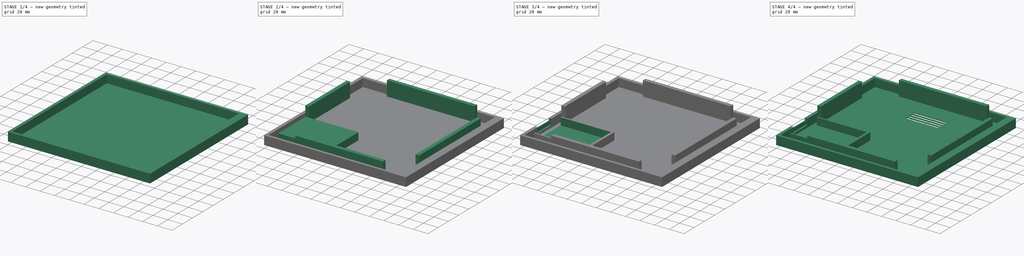
[diagram: build sequence overview — one tinted view per stage of 4, left to right]
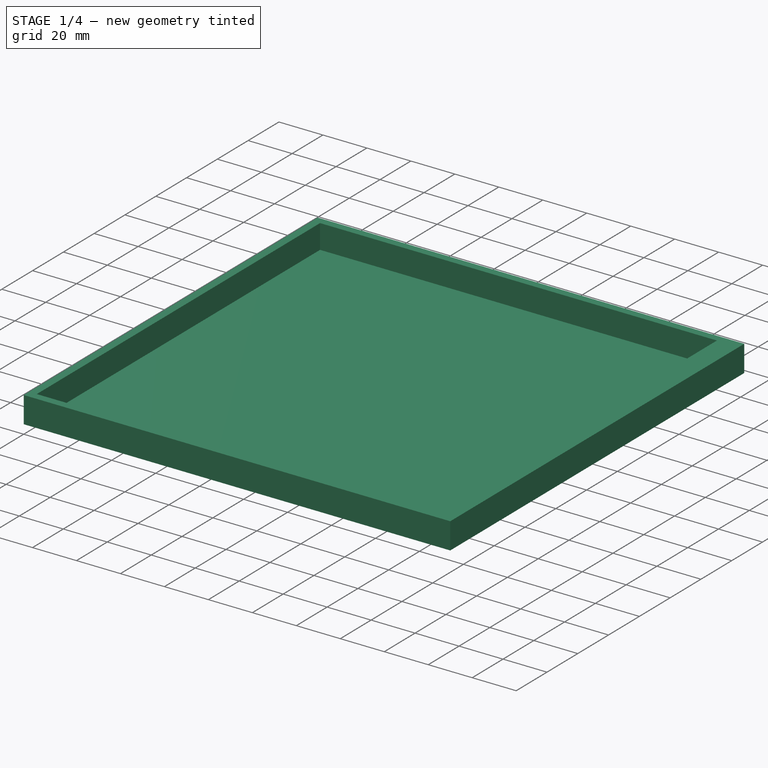
[diagram: stage 1 of 4 — iso view after this stage's code; geometry added in this stage tinted green]
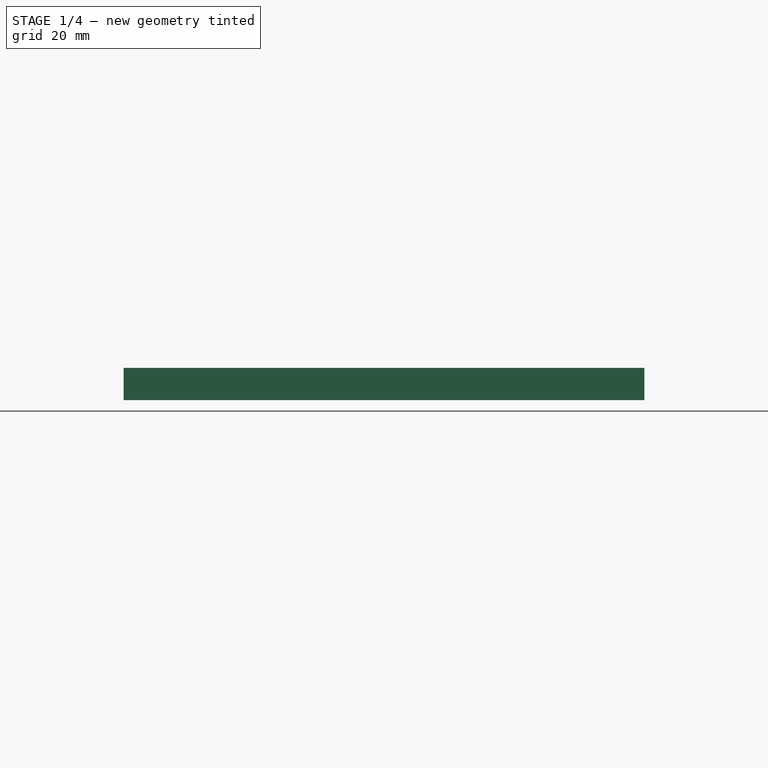
[diagram: stage 1 of 4 — front view after this stage's code; geometry added in this stage tinted green]
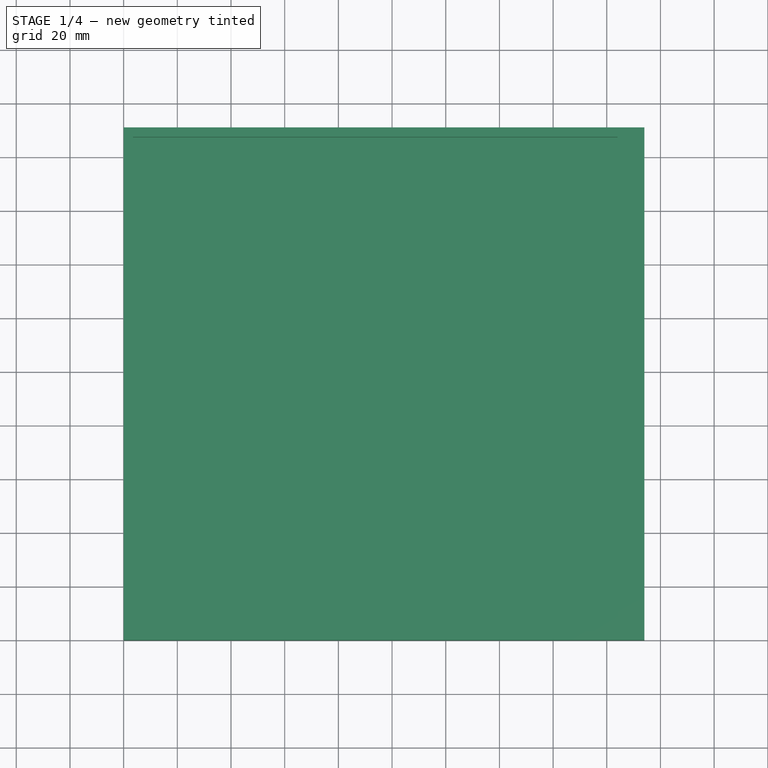
[diagram: stage 1 of 4 — top view after this stage's code; geometry added in this stage tinted green]
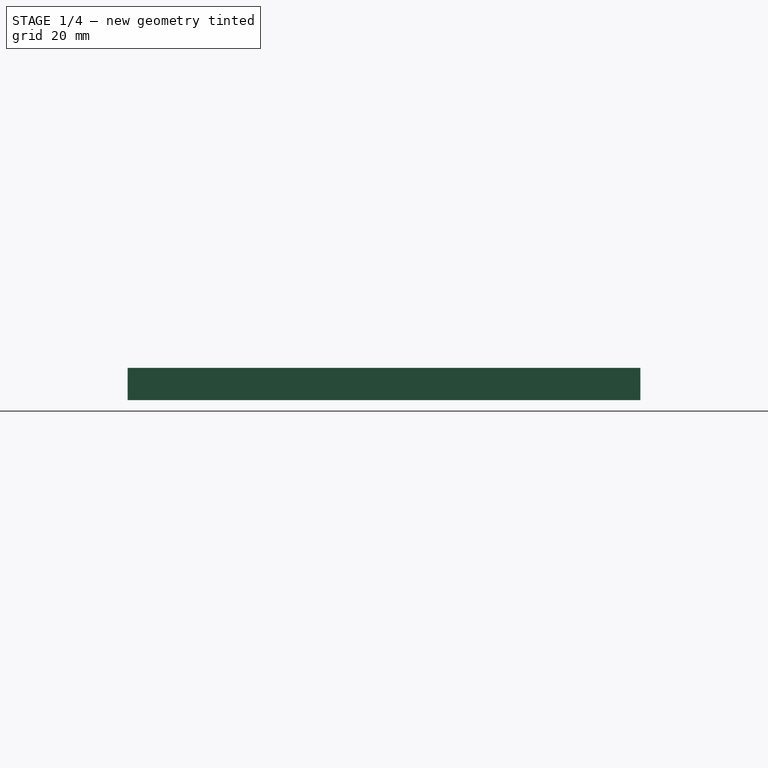
[diagram: stage 1 of 4 — right view after this stage's code; geometry added in this stage tinted green]
FCSTD DOCUMENT  (FreeCAD 1.0R39319 (Git))
Label: epaper_back
License: All rights reserved
objects: Sketcher::SketchObject×8, PartDesign::Pocket×5, PartDesign::Pad×3, PartDesign::LinearPattern×1, PartDesign::Body×1
note: 43 computed .brp shape members not serialized (recipe doc carries the construction recipe); baked Part::Feature solids carry a one-line shape summary decoded from their .brp

FEATURE [Sketcher::SketchObject] Sketch
  ArcFitTolerance = 1e-06
  AttachmentSupport = -> [XY_Plane]
  FullyConstrained = true
  MakeInternals = false
  MapMode = 5
  sketch-geometry (4):
    g0: LineSegment StartX=0 StartY=0 StartZ=0 EndX=194 EndY=0 EndZ=0
    g1: LineSegment StartX=194 StartY=0 StartZ=0 EndX=194 EndY=191 EndZ=0
    g2: LineSegment StartX=194 StartY=191 StartZ=0 EndX=0 EndY=191 EndZ=0
    g3: LineSegment StartX=0 StartY=191 StartZ=0 EndX=0 EndY=0 EndZ=0
  constraints (11):
    c: Coincident(g0,g1)
    c: Coincident(g1,g2)
    c: Coincident(g2,g3)
    c: Coincident(g3,g0)
    c: Horizontal(g0)
    c: Horizontal(g2)
    c: Vertical(g1)
    c: Vertical(g3)
    c: Coincident(g0,g-1)
    c: DistanceX(g2,g2) = 194
    c: DistanceY(g3,g3) = 191
FEATURE [PartDesign::Pad] Pad
  Direction = (0,0,1)
  Length = 12
  Length2 = 10
  Profile = -> Sketch
  ReferenceAxis = -> Sketch [N_Axis]
  Refine = true
  Reversed = true
  Suppressed = false
  Type = 0
FEATURE [Sketcher::SketchObject] Sketch002
  ArcFitTolerance = 1e-06
  AttachmentSupport = -> [XY_Plane]
  FullyConstrained = true
  MakeInternals = false
  MapMode = 5
  sketch-geometry (4):
    g0: LineSegment StartX=3.5 StartY=187.5 StartZ=0 EndX=3.5 EndY=3.5 EndZ=0
    g1: LineSegment StartX=3.5 StartY=3.5 StartZ=0 EndX=184 EndY=3.5 EndZ=0
    g2: LineSegment StartX=184 StartY=3.5 StartZ=0 EndX=184 EndY=187.5 EndZ=0
    g3: LineSegment StartX=184 StartY=187.5 StartZ=0 EndX=3.5 EndY=187.5 EndZ=0
  constraints (12):
    c: Coincident(g0,g1)
    c: Coincident(g1,g2)
    c: Coincident(g2,g3)
    c: Coincident(g3,g0)
    c: Vertical(g0)
    c: Vertical(g2)
    c: Horizontal(g1)
    c: Horizontal(g3)
    c: DistanceX(g3,g3) = 180.5
    c: DistanceY(g0,g0) = 184
    c: Distance(g-2,g0) = 3.5
    c: Distance(g-1,g1) = 3.5
FEATURE [PartDesign::Pocket] Pocket
  BaseFeature = -> Pad
  Direction = (0,0,-1)
  Length = 11
  Length2 = 5
  Profile = -> Sketch002
  ReferenceAxis = -> Sketch002 [N_Axis]
  Refine = true
  Suppressed = false
  Type = 0
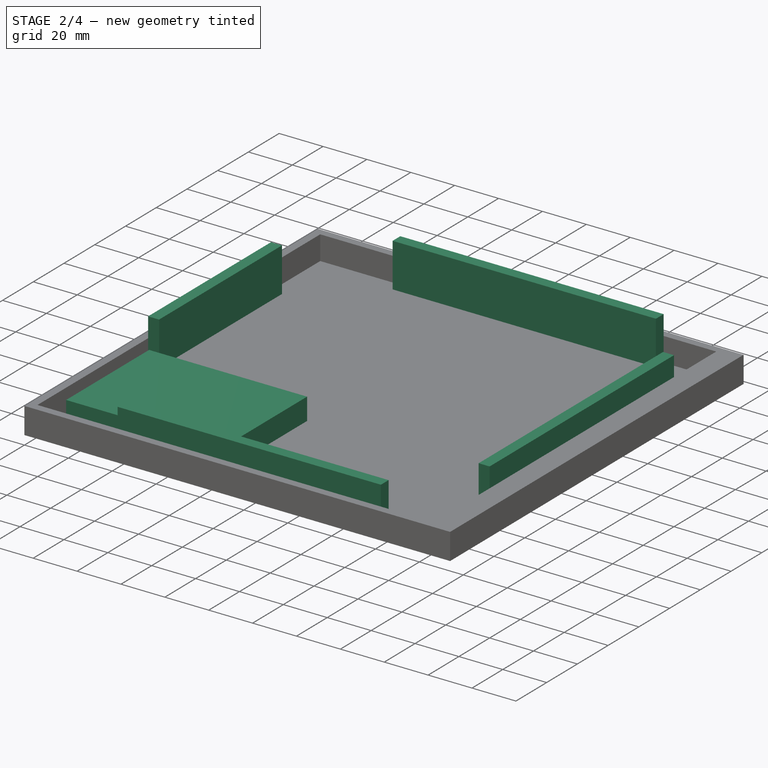
[diagram: stage 2 of 4 — iso view after this stage's code; geometry added in this stage tinted green]
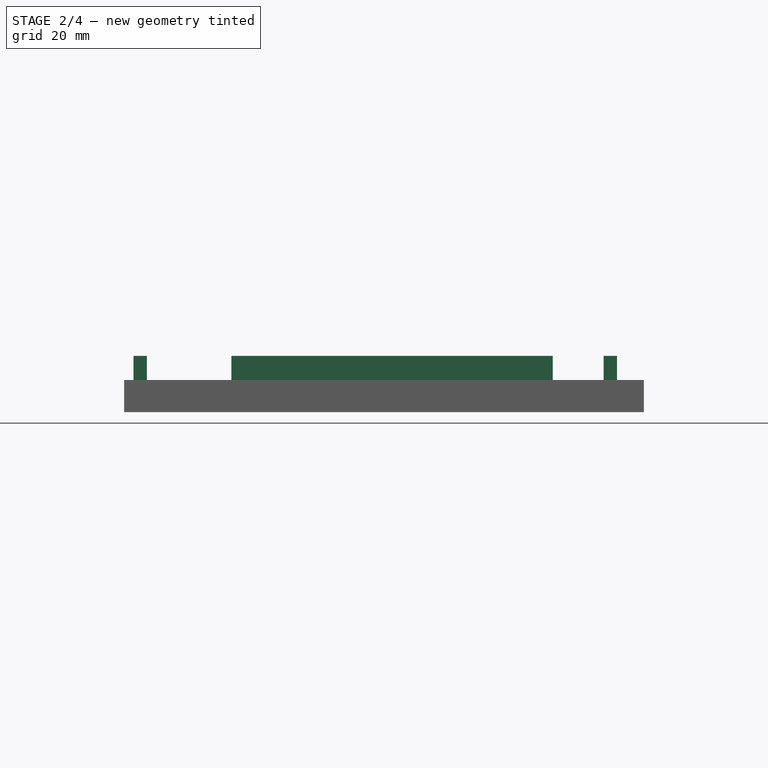
[diagram: stage 2 of 4 — front view after this stage's code; geometry added in this stage tinted green]
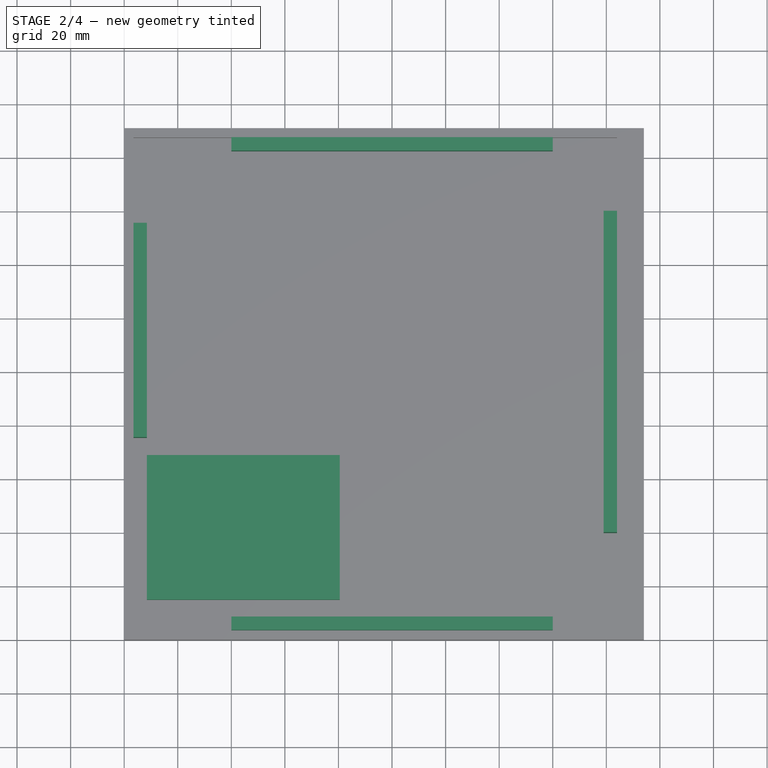
[diagram: stage 2 of 4 — top view after this stage's code; geometry added in this stage tinted green]
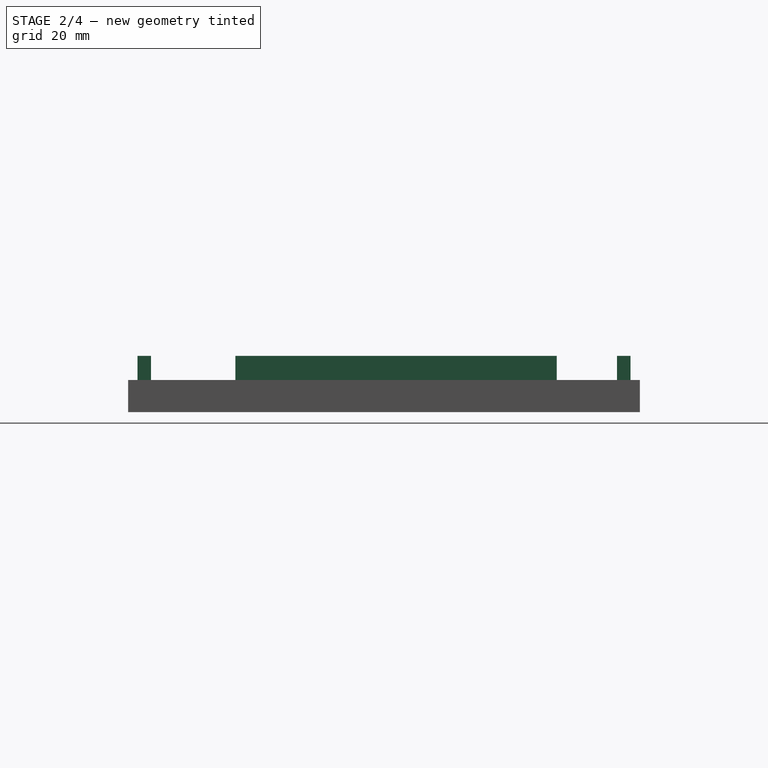
[diagram: stage 2 of 4 — right view after this stage's code; geometry added in this stage tinted green]
FEATURE [Sketcher::SketchObject] Sketch004
  ArcFitTolerance = 1e-06
  AttachmentSupport = -> [Pocket]
  FullyConstrained = true
  MakeInternals = false
  MapMode = 5
  Placement = pos=(0,0,-11) rot=(0,0,1;0rad)
  sketch-geometry (16):
    g0: LineSegment StartX=40 StartY=187.5 StartZ=0 EndX=40 EndY=182.5 EndZ=0
    g1: LineSegment StartX=40 StartY=182.5 StartZ=0 EndX=160 EndY=182.5 EndZ=0
    g2: LineSegment StartX=160 StartY=182.5 StartZ=0 EndX=160 EndY=187.5 EndZ=0
    g3: LineSegment StartX=160 StartY=187.5 StartZ=0 EndX=40 EndY=187.5 EndZ=0
    g4: LineSegment StartX=40 StartY=8.5 StartZ=0 EndX=40 EndY=3.5 EndZ=0
    g5: LineSegment StartX=40 StartY=3.5 StartZ=0 EndX=160 EndY=3.5 EndZ=0
    g6: LineSegment StartX=160 StartY=3.5 StartZ=0 EndX=160 EndY=8.5 EndZ=0
    g7: LineSegment StartX=160 StartY=8.5 StartZ=0 EndX=40 EndY=8.5 EndZ=0
    g8: LineSegment StartX=179 StartY=160 StartZ=0 EndX=179 EndY=40 EndZ=0
    g9: LineSegment StartX=179 StartY=40 StartZ=0 EndX=184 EndY=40 EndZ=0
    g10: LineSegment StartX=184 StartY=40 StartZ=0 EndX=184 EndY=160 EndZ=0
    g11: LineSegment StartX=184 StartY=160 StartZ=0 EndX=179 EndY=160 EndZ=0
    g12: LineSegment StartX=3.5 StartY=155.5 StartZ=0 EndX=3.5 EndY=75.5 EndZ=0
    g13: LineSegment StartX=3.5 StartY=75.5 StartZ=0 EndX=8.5 EndY=75.5 EndZ=0
    g14: LineSegment StartX=8.5 StartY=75.5 StartZ=0 EndX=8.5 EndY=155.5 EndZ=0
    g15: LineSegment StartX=8.5 StartY=155.5 StartZ=0 EndX=3.5 EndY=155.5 EndZ=0
  constraints (48):
    c: Coincident(g0,g1)
    c: Coincident(g1,g2)
    c: Coincident(g2,g3)
    c: Coincident(g3,g0)
    c: Vertical(g0)
    c: Vertical(g2)
    c: Horizontal(g1)
    c: Horizontal(g3)
    c: Coincident(g4,g5)
    c: Coincident(g5,g6)
    c: Coincident(g6,g7)
    c: Coincident(g7,g4)
    c: Vertical(g4)
    c: Vertical(g6)
    c: Horizontal(g5)
    c: Horizontal(g7)
    c: Coincident(g8,g9)
    c: Coincident(g9,g10)
    c: Coincident(g10,g11)
    c: Coincident(g11,g8)
    c: Vertical(g8)
    c: Vertical(g10)
    c: Horizontal(g9)
    c: Horizontal(g11)
    c: Coincident(g12,g13)
    c: Coincident(g13,g14)
    c: Coincident(g14,g15)
    c: Coincident(g15,g12)
    c: Vertical(g12)
    c: Vertical(g14)
    c: Horizontal(g13)
    c: Horizontal(g15)
    c: DistanceY(g2,g2) = 5
    c: DistanceX(g15,g15) = 5
    c: DistanceX(g11,g11) = 5
    c: DistanceY(g6,g6) = 5
    c: Distance(g-1,g5) = 3.5
    c: Distance(g-2,g12) = 3.5
    c: Distance(g-2,g8) = 179
    c: Distance(g-1,g1) = 182.5
    c: DistanceY(g14,g14) = 80
    c: DistanceX(g1,g1) = 120
    c: DistanceY(g8,g8) = 120
    c: Distance(g-1,g13) = 75.5
    c: Distance(g-1,g9) = 40
    c: Distance(g-2,g4) = 40
    c: Distance(g-2,g0) = 40
    c: DistanceX(g7,g7) = 120
FEATURE [PartDesign::Pad] Pad001
  BaseFeature = -> Pocket
  Direction = (0,0,1)
  Length = 20
  Length2 = 10
  Profile = -> Sketch004
  ReferenceAxis = -> Sketch004 [N_Axis]
  Refine = true
  Suppressed = false
  Type = 0
FEATURE [Sketcher::SketchObject] Sketch005
  ArcFitTolerance = 1e-06
  AttachmentSupport = -> [Pad001]
  FullyConstrained = true
  MakeInternals = false
  MapMode = 5
  Placement = pos=(0,0,-11) rot=(0,0,1;0rad)
  sketch-geometry (4):
    g0: LineSegment StartX=8.5 StartY=69 StartZ=0 EndX=8.5 EndY=15 EndZ=0
    g1: LineSegment StartX=8.5 StartY=15 StartZ=0 EndX=80.5 EndY=15 EndZ=0
    g2: LineSegment StartX=80.5 StartY=15 StartZ=0 EndX=80.5 EndY=69 EndZ=0
    g3: LineSegment StartX=80.5 StartY=69 StartZ=0 EndX=8.5 EndY=69 EndZ=0
  constraints (12):
    c: Coincident(g0,g1)
    c: Coincident(g1,g2)
    c: Coincident(g2,g3)
    c: Coincident(g3,g0)
    c: Vertical(g0)
    c: Vertical(g2)
    c: Horizontal(g1)
    c: Horizontal(g3)
    c: DistanceX(g3,g3) = 72
    c: DistanceY(g2,g2) = 54
    c: Distance(g-2,g0) = 8.5
    c: Distance(g-1,g1) = 15
FEATURE [PartDesign::Pad] Pad002
  BaseFeature = -> Pad001
  Direction = (0,0,1)
  Length = 10
  Length2 = 10
  Profile = -> Sketch005
  ReferenceAxis = -> Sketch005 [N_Axis]
  Refine = true
  Suppressed = false
  Type = 0
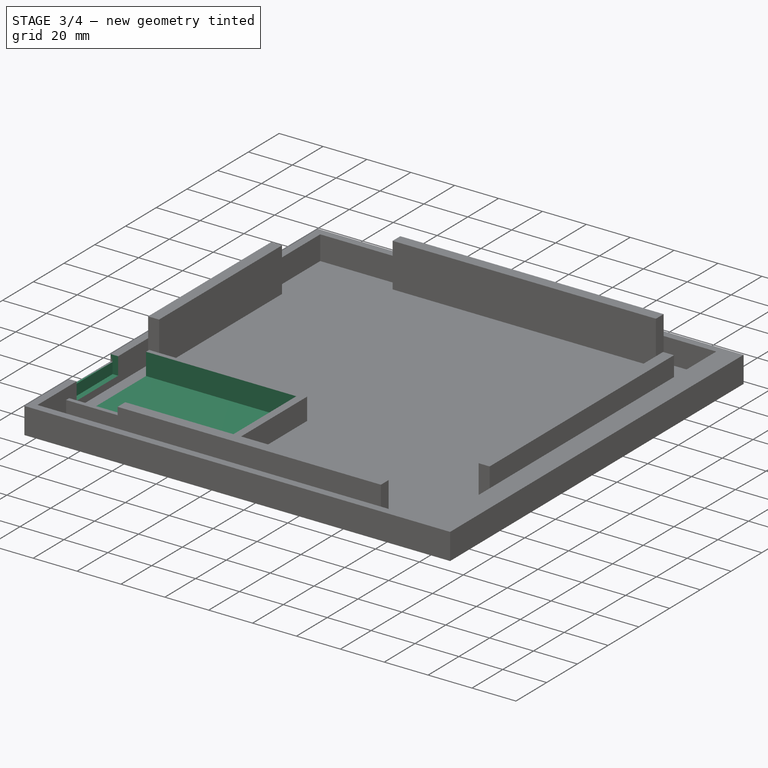
[diagram: stage 3 of 4 — iso view after this stage's code; geometry added in this stage tinted green]
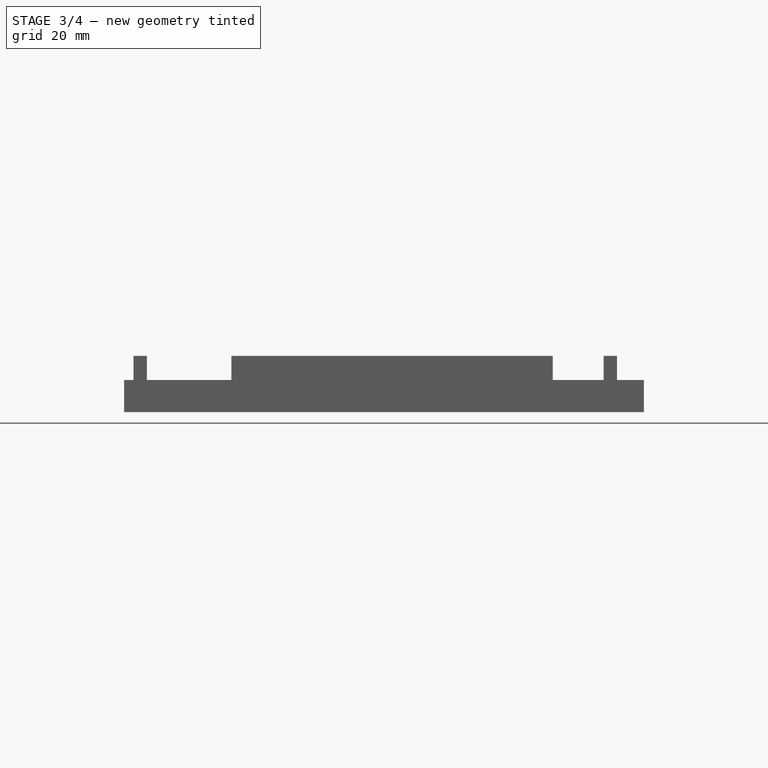
[diagram: stage 3 of 4 — front view after this stage's code; geometry added in this stage tinted green]
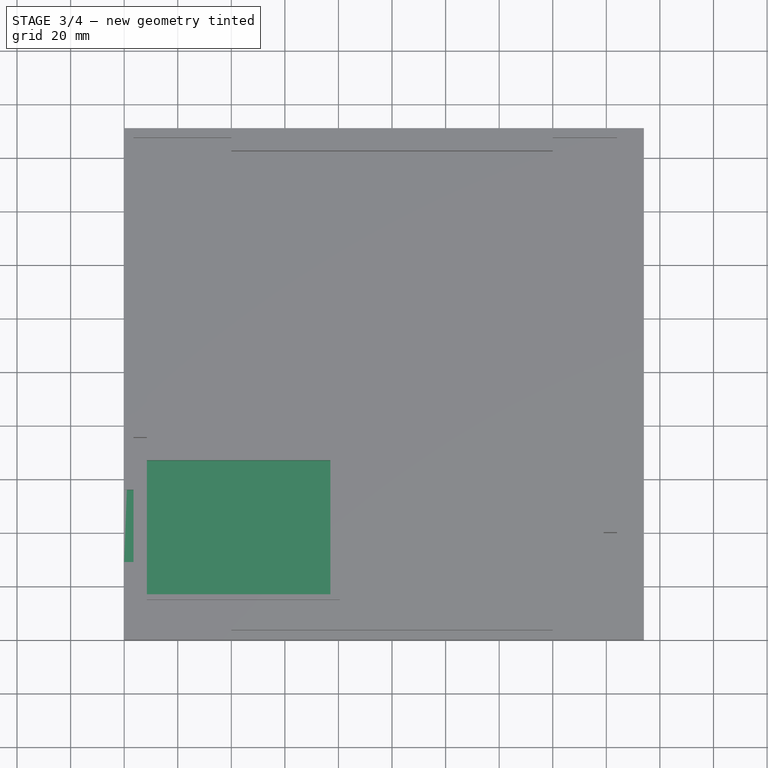
[diagram: stage 3 of 4 — top view after this stage's code; geometry added in this stage tinted green]
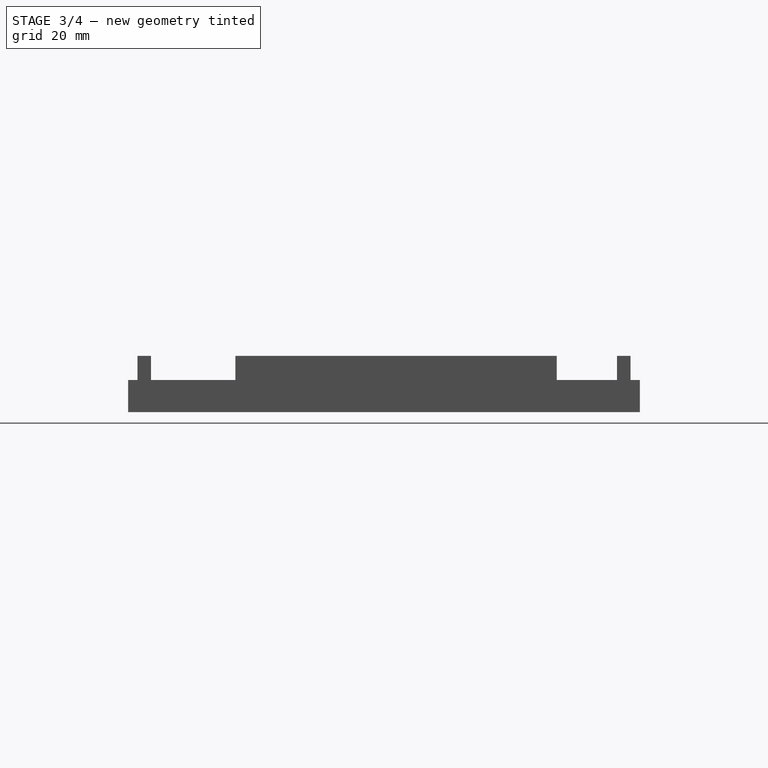
[diagram: stage 3 of 4 — right view after this stage's code; geometry added in this stage tinted green]
FEATURE [Sketcher::SketchObject] Sketch006
  ArcFitTolerance = 1e-06
  AttachmentSupport = -> [Pad002]
  FullyConstrained = true
  MakeInternals = false
  MapMode = 5
  Placement = pos=(0,0,-1) rot=(0,0,1;0rad)
  sketch-geometry (4):
    g0: LineSegment StartX=7 StartY=67 StartZ=0 EndX=7 EndY=17 EndZ=0
    g1: LineSegment StartX=7 StartY=17 StartZ=0 EndX=77 EndY=17 EndZ=0
    g2: LineSegment StartX=77 StartY=17 StartZ=0 EndX=77 EndY=67 EndZ=0
    g3: LineSegment StartX=77 StartY=67 StartZ=0 EndX=7 EndY=67 EndZ=0
  constraints (12):
    c: Coincident(g0,g1)
    c: Coincident(g1,g2)
    c: Coincident(g2,g3)
    c: Coincident(g3,g0)
    c: Vertical(g0)
    c: Vertical(g2)
    c: Horizontal(g1)
    c: Horizontal(g3)
    c: DistanceX(g3,g3) = 70
    c: DistanceY(g2,g2) = 50
    c: Distance(g1,g-1) = 17
    c: Distance(g-2,g0) = 7
FEATURE [PartDesign::Pocket] Pocket001
  BaseFeature = -> Pad002
  Direction = (0,0,-1)
  Length = 10
  Length2 = 5
  Profile = -> Sketch006
  ReferenceAxis = -> Sketch006 [N_Axis]
  Refine = true
  Suppressed = false
  Type = 0
FEATURE [Sketcher::SketchObject] Sketch007
  ArcFitTolerance = 1e-06
  AttachmentSupport = -> [Pocket001]
  FullyConstrained = true
  MakeInternals = false
  MapMode = 5
  Placement = pos=(0,0,0) rot=(0.57735,-0.57735,-0.57735;2.0944rad)
  sketch-geometry (4):
    g0: LineSegment StartX=-56 StartY=0 StartZ=0 EndX=-56 EndY=-3 EndZ=0
    g1: LineSegment StartX=-56 StartY=-3 StartZ=0 EndX=-29 EndY=-3 EndZ=0
    g2: LineSegment StartX=-29 StartY=-3 StartZ=0 EndX=-29 EndY=0 EndZ=0
    g3: LineSegment StartX=-29 StartY=0 StartZ=0 EndX=-56 EndY=0 EndZ=0
  constraints (12):
    c: Coincident(g0,g1)
    c: Coincident(g1,g2)
    c: Coincident(g2,g3)
    c: Coincident(g3,g0)
    c: Vertical(g0)
    c: Vertical(g2)
    c: Horizontal(g1)
    c: Horizontal(g3)
    c: PointOnObject(g0,g-1)
    c: Distance(g2,g2) = 3
    c: DistanceX(g3,g3) = 27
    c: Distance(g-2,g2) = 29
FEATURE [PartDesign::Pocket] Pocket002
  BaseFeature = -> Pocket001
  Direction = (1,0,0)
  Length = 5
  Length2 = 5
  Profile = -> Sketch007
  ReferenceAxis = -> Sketch007 [N_Axis]
  Refine = true
  Suppressed = false
  Type = 0
FEATURE [Sketcher::SketchObject] Sketch008
  ArcFitTolerance = 1e-06
  AttachmentSupport = -> [Pocket002]
  FullyConstrained = true
  MakeInternals = false
  MapMode = 5
  Placement = pos=(0,0,-3) rot=(0,0,1;0rad)
  sketch-geometry (4):
    g0: LineSegment StartX=1 StartY=56 StartZ=0 EndX=1 EndY=29 EndZ=0
    g1: LineSegment StartX=1 StartY=29 StartZ=0 EndX=3.5 EndY=29 EndZ=0
    g2: LineSegment StartX=3.5 StartY=29 StartZ=0 EndX=3.5 EndY=56 EndZ=0
    g3: LineSegment StartX=3.5 StartY=56 StartZ=0 EndX=1 EndY=56 EndZ=0
  constraints (12):
    c: Coincident(g0,g1)
    c: Coincident(g1,g2)
    c: Coincident(g2,g3)
    c: Coincident(g3,g0)
    c: Vertical(g0)
    c: Vertical(g2)
    c: Horizontal(g1)
    c: Horizontal(g3)
    c: DistanceY(g2,g2) = 27
    c: DistanceX(g3,g3) = 2.5
    c: Distance(g1,g-1) = 29
    c: Distance(g-2,g0) = 1
FEATURE [PartDesign::Pocket] Pocket003
  BaseFeature = -> Pocket002
  Direction = (0,0,-1)
  Length = 5
  Length2 = 5
  Profile = -> Sketch008
  ReferenceAxis = -> Sketch008 [N_Axis]
  Refine = true
  Suppressed = false
  Type = 0
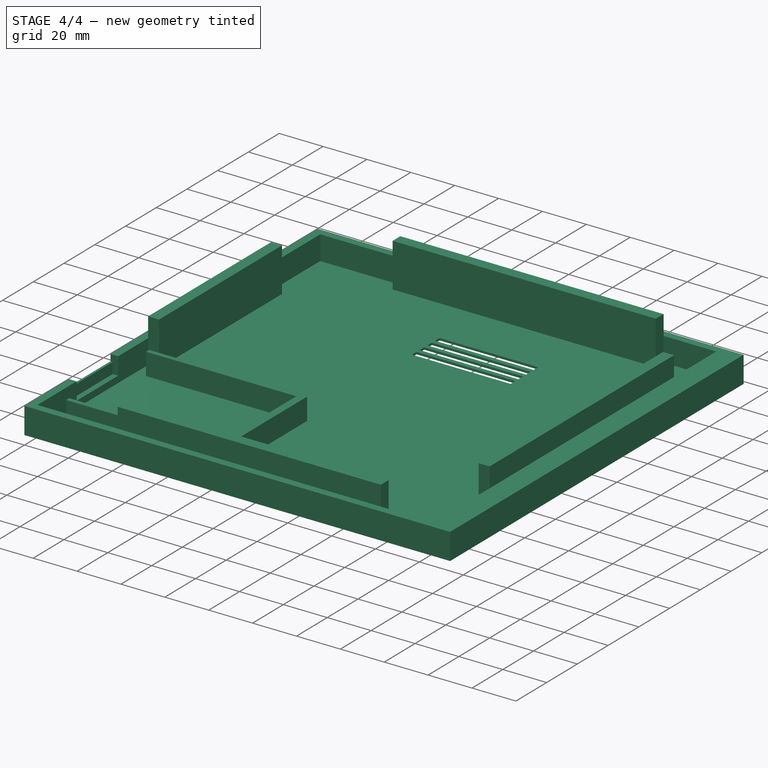
[diagram: stage 4 of 4 — iso view after this stage's code; geometry added in this stage tinted green]
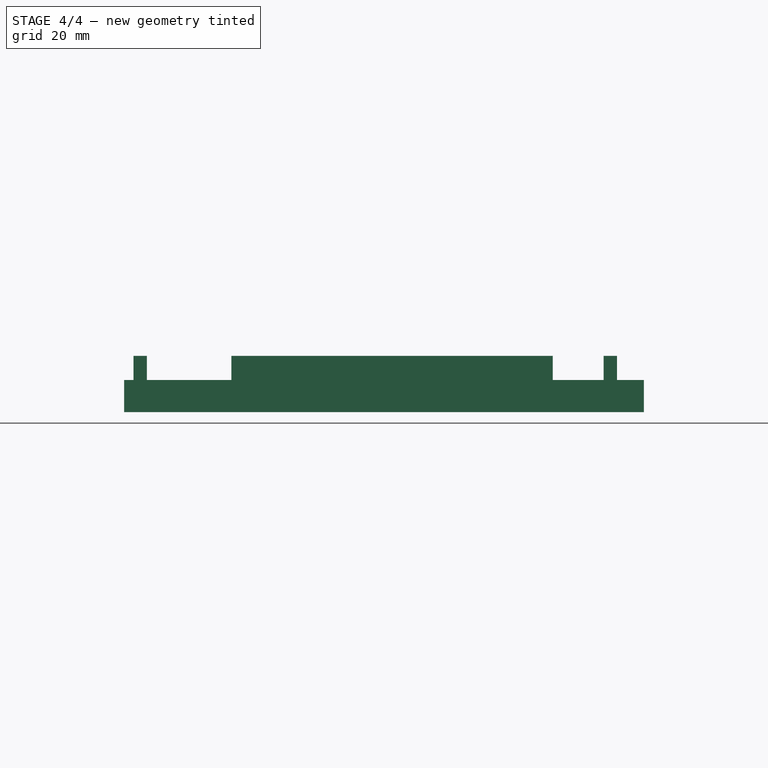
[diagram: stage 4 of 4 — front view after this stage's code; geometry added in this stage tinted green]
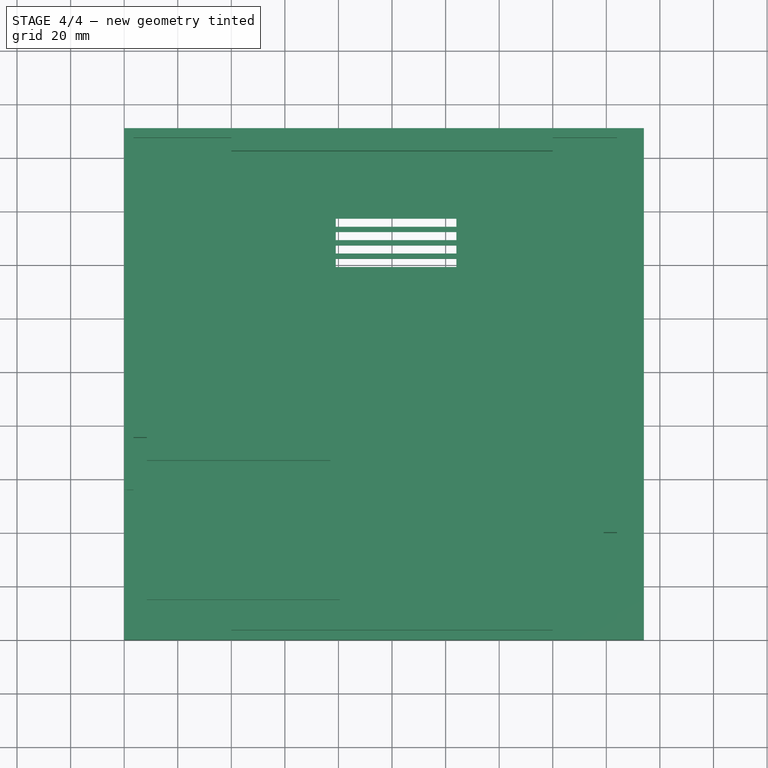
[diagram: stage 4 of 4 — top view after this stage's code; geometry added in this stage tinted green]
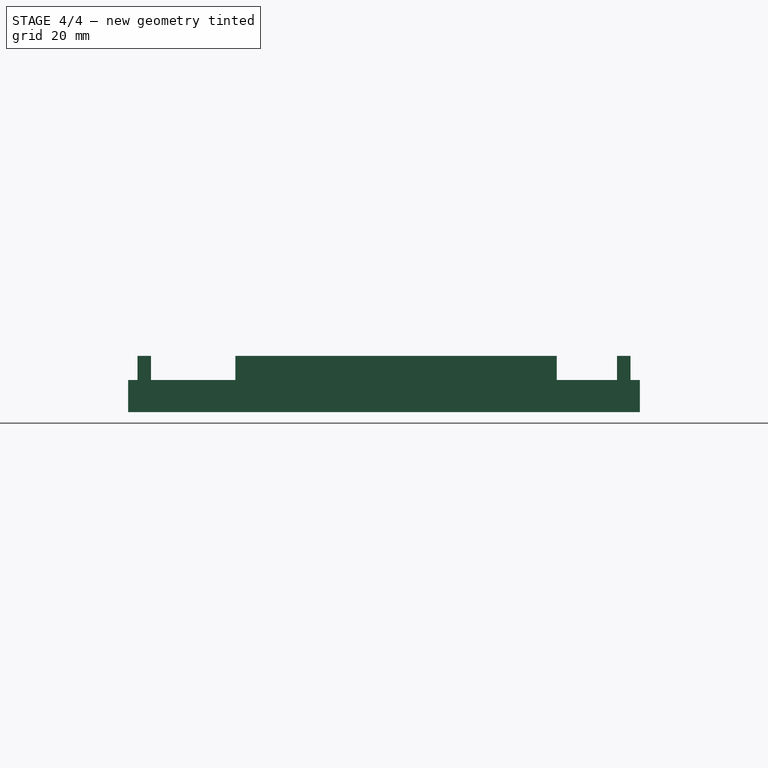
[diagram: stage 4 of 4 — right view after this stage's code; geometry added in this stage tinted green]
FEATURE [Sketcher::SketchObject] Sketch009
  ArcFitTolerance = 1e-06
  AttachmentSupport = -> [Pocket003]
  FullyConstrained = false
  MakeInternals = false
  MapMode = 5
  Placement = pos=(0,0,-11) rot=(0,0,1;0rad)
  sketch-geometry (4):
    g0: LineSegment StartX=79 StartY=157.368 StartZ=0 EndX=79 EndY=154.368 EndZ=0
    g1: LineSegment StartX=79 StartY=154.368 StartZ=0 EndX=124 EndY=154.368 EndZ=0
    g2: LineSegment StartX=124 StartY=154.368 StartZ=0 EndX=124 EndY=157.368 EndZ=0
    g3: LineSegment StartX=124 StartY=157.368 StartZ=0 EndX=79 EndY=157.368 EndZ=0
  constraints (11):
    c: Coincident(g0,g1)
    c: Coincident(g1,g2)
    c: Coincident(g2,g3)
    c: Coincident(g3,g0)
    c: Vertical(g0)
    c: Vertical(g2)
    c: Horizontal(g1)
    c: Horizontal(g3)
    c: DistanceX(g3,g3) = 45
    c: DistanceY(g0,g0) = 3
    c: Distance(g-2,g0) = 79
FEATURE [PartDesign::Pocket] Pocket004
  BaseFeature = -> Pocket003
  Direction = (0,0,-1)
  Length = 5
  Length2 = 5
  Profile = -> Sketch009
  ReferenceAxis = -> Sketch009 [N_Axis]
  Refine = true
  Suppressed = false
  Type = 0
FEATURE [PartDesign::LinearPattern] LinearPattern
  BaseFeature = -> Pocket004
  Direction = -> Sketch009 [V_Axis]
  Length = 15
  Mode = 0
  Occurrences = 4
  Offset = 5
  Originals = -> [Pocket004]
  Refine = true
  Reversed = true
  Suppressed = false
  TransformMode = 0
FEATURE [PartDesign::Body] Body  label="Corps"
  AllowCompound = false
  Group = -> [Sketch,Pad,Sketch002,Pocket,Sketch004,Pad001,Sketch005,Pad002,Sketch006,Pocket001,Sketch007,Pocket002,Sketch008,Pocket003,Sketch009,Pocket004,LinearPattern]
  Origin = -> Origin
  Tip = -> LinearPattern
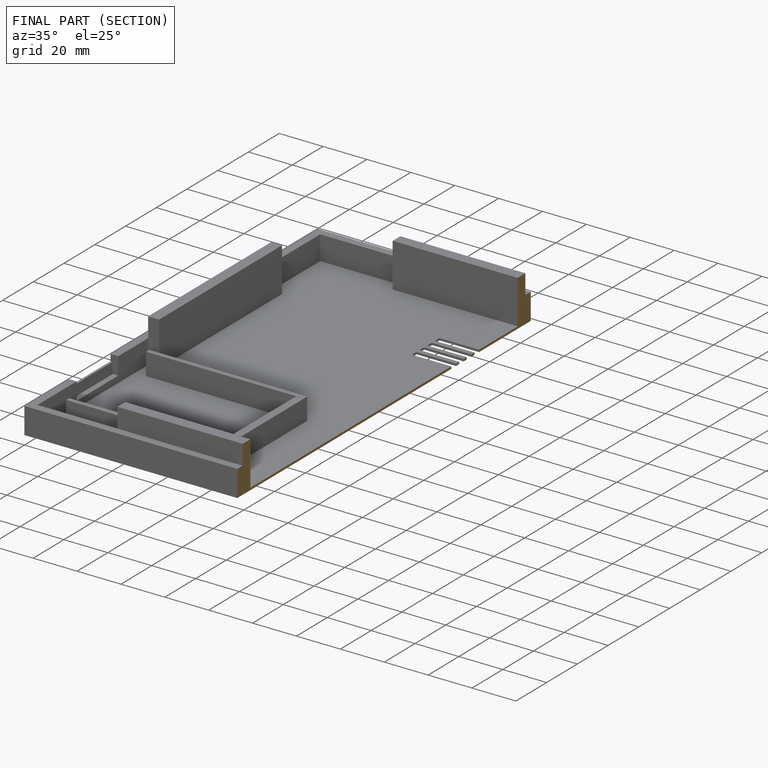
[diagram: finished part — half-section view (interior)]
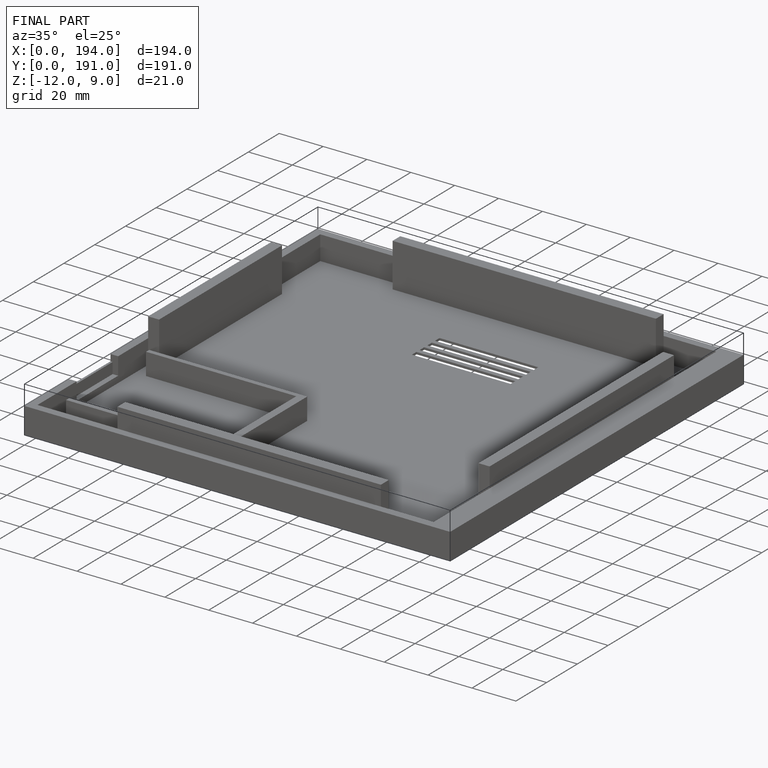
[diagram: finished part — iso view with bounding-box wireframe]
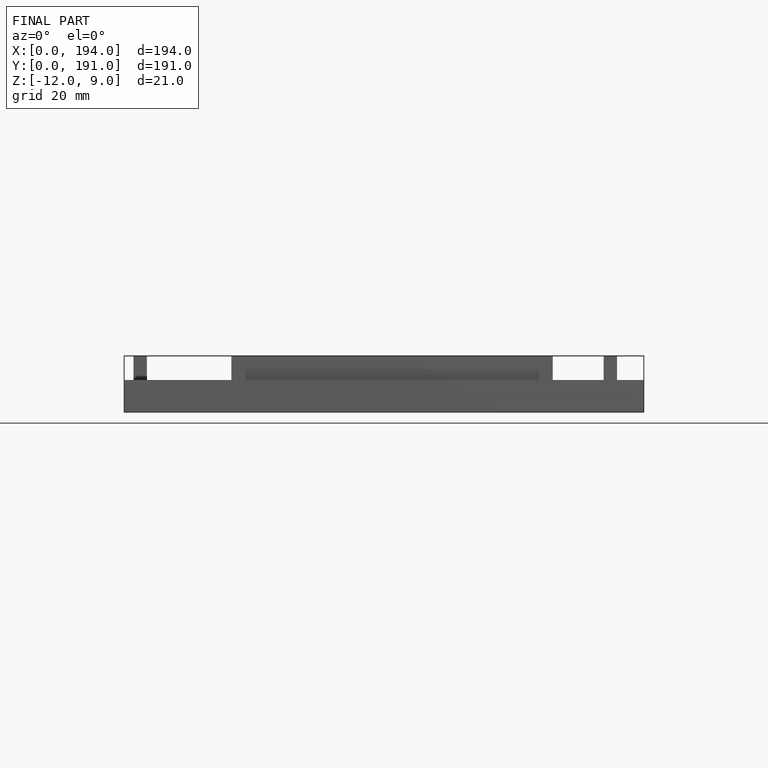
[diagram: finished part — front view with bounding-box wireframe]
